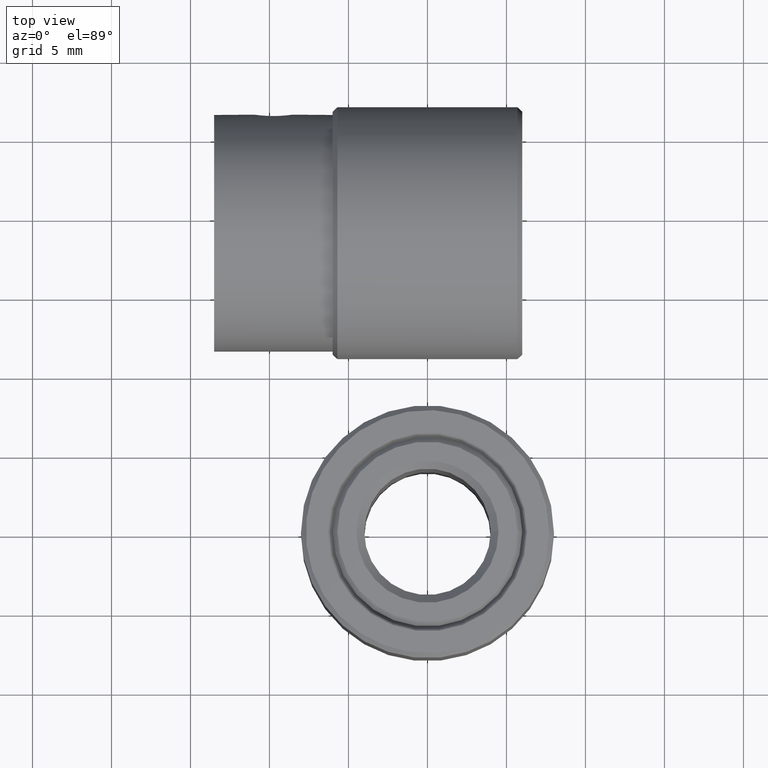
[diagram: clean part render]
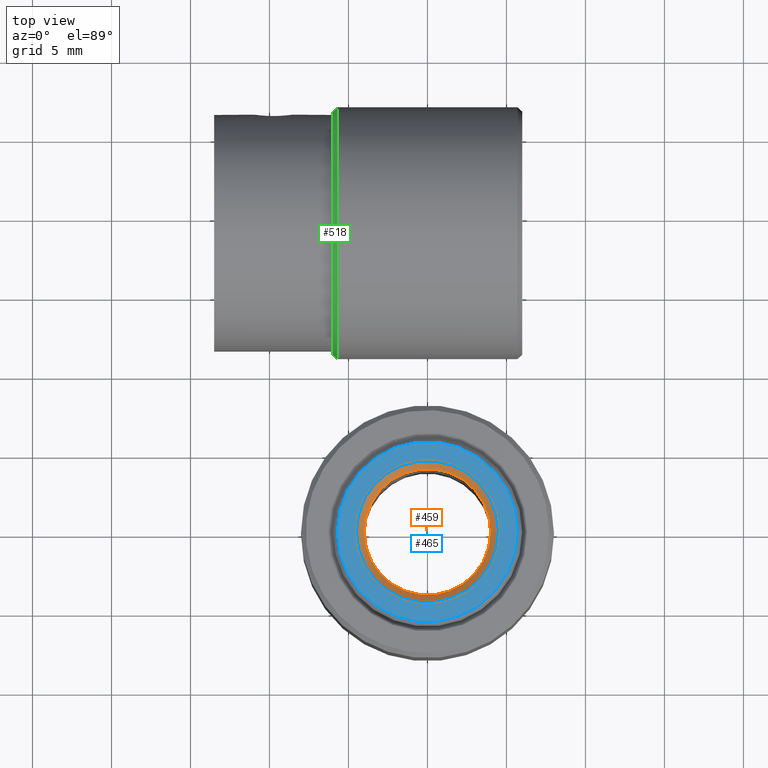
[diagram: same view with three faces highlighted in distinct colors, each labeled with its STEP entity id]
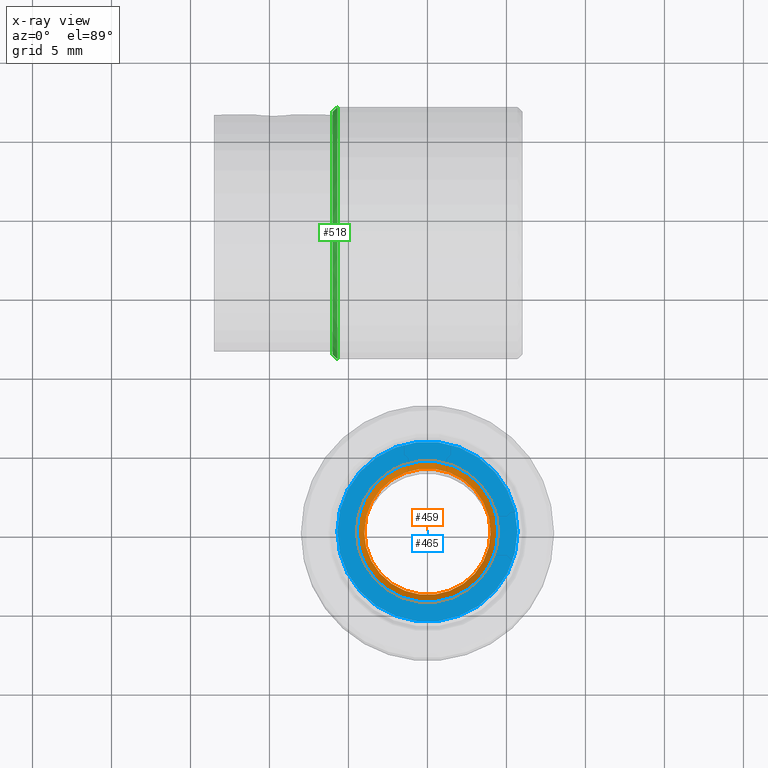
[diagram: x-ray of the same camera — body ghosted, the three highlighted faces saturated]
A machine part, top view with three faces highlighted in distinct colors.
The next image is the same camera in x-ray (body ghosted, the three faces saturated) — at least one of them is partly hidden behind the body in this view.
Their STEP definitions:

[orange] entity #459 — the highlighted conical surface has half-angle 45 deg.
#459 = ADVANCED_FACE( '', ( #566, #567 ), #568, .F. );
#566 = FACE_OUTER_BOUND( '', #810, .T. );
#567 = FACE_BOUND( '', #811, .T. );
#568 = CONICAL_SURFACE( '', #812, 4.00000000000000, 0.785398163397448 );
#810 = EDGE_LOOP( '', ( #1062 ) );
#811 = EDGE_LOOP( '', ( #1063 ) );
#812 = AXIS2_PLACEMENT_3D( '', #1064, #1065, #1066 );
#1062 = ORIENTED_EDGE( '', *, *, #1580, .F. );
#1063 = ORIENTED_EDGE( '', *, *, #1576, .F. );
#1064 = CARTESIAN_POINT( '', ( 0.000000000000000, 0.000000000000000, -0.500000000000000 ) );
#1065 = DIRECTION( '', ( 0.000000000000000, -0.000000000000000, 1.00000000000000 ) );
#1066 = DIRECTION( '', ( 1.00000000000000, 0.000000000000000, -0.000000000000000 ) );
#1576 = EDGE_CURVE( '', #1718, #1718, #1719, .T. );
#1580 = EDGE_CURVE( '', #1726, #1726, #1727, .F. );
#1718 = VERTEX_POINT( '', #2036 );
#1719 = CIRCLE( '', #2037, 4.00000000000000 );
#1726 = VERTEX_POINT( '', #2122 );
#1727 = CIRCLE( '', #2123, 4.50000000000000 );
#2036 = CARTESIAN_POINT( '', ( 4.00000000000000, 0.000000000000000, -0.500000000000000 ) );
#2037 = AXIS2_PLACEMENT_3D( '', #2582, #2583, #2584 );
#2122 = CARTESIAN_POINT( '', ( 4.50000000000000, 0.000000000000000, 0.000000000000000 ) );
#2123 = AXIS2_PLACEMENT_3D( '', #2588, #2589, #2590 );
#2582 = CARTESIAN_POINT( '', ( 0.000000000000000, 0.000000000000000, -0.500000000000000 ) );
#2583 = DIRECTION( '', ( 0.000000000000000, 0.000000000000000, 1.00000000000000 ) );
#2584 = DIRECTION( '', ( 1.00000000000000, 0.000000000000000, -0.000000000000000 ) );
#2588 = CARTESIAN_POINT( '', ( 0.000000000000000, 0.000000000000000, 0.000000000000000 ) );
#2589 = DIRECTION( '', ( 0.000000000000000, 0.000000000000000, 1.00000000000000 ) );
#2590 = DIRECTION( '', ( 1.00000000000000, 0.000000000000000, -0.000000000000000 ) );

[blue] entity #465 — the highlighted planar face has unit normal (0, 0, 1).
#465 = ADVANCED_FACE( '', ( #584, #585 ), #586, .T. );
#584 = FACE_OUTER_BOUND( '', #828, .T. );
#585 = FACE_BOUND( '', #829, .T. );
#586 = PLANE( '', #830 );
#828 = EDGE_LOOP( '', ( #1092 ) );
#829 = EDGE_LOOP( '', ( #1093 ) );
#830 = AXIS2_PLACEMENT_3D( '', #1094, #1095, #1096 );
#1092 = ORIENTED_EDGE( '', *, *, #1574, .T. );
#1093 = ORIENTED_EDGE( '', *, *, #1580, .T. );
#1094 = CARTESIAN_POINT( '', ( 0.000000000000000, 0.000000000000000, 0.000000000000000 ) );
#1095 = DIRECTION( '', ( 0.000000000000000, 0.000000000000000, 1.00000000000000 ) );
#1096 = DIRECTION( '', ( 1.00000000000000, 0.000000000000000, 0.000000000000000 ) );
#1574 = EDGE_CURVE( '', #1714, #1714, #1715, .T. );
#1580 = EDGE_CURVE( '', #1726, #1726, #1727, .F. );
#1714 = VERTEX_POINT( '', #2032 );
#1715 = CIRCLE( '', #2033, 5.70000000000000 );
#1726 = VERTEX_POINT( '', #2122 );
#1727 = CIRCLE( '', #2123, 4.50000000000000 );
#2032 = CARTESIAN_POINT( '', ( 5.70000000000000, 0.000000000000000, 0.000000000000000 ) );
#2033 = AXIS2_PLACEMENT_3D( '', #2576, #2577, #2578 );
#2122 = CARTESIAN_POINT( '', ( 4.50000000000000, 0.000000000000000, 0.000000000000000 ) );
#2123 = AXIS2_PLACEMENT_3D( '', #2588, #2589, #2590 );
#2576 = CARTESIAN_POINT( '', ( 0.000000000000000, 0.000000000000000, 0.000000000000000 ) );
#2577 = DIRECTION( '', ( 0.000000000000000, 0.000000000000000, 1.00000000000000 ) );
#2578 = DIRECTION( '', ( 1.00000000000000, 0.000000000000000, -0.000000000000000 ) );
#2588 = CARTESIAN_POINT( '', ( 0.000000000000000, 0.000000000000000, 0.000000000000000 ) );
#2589 = DIRECTION( '', ( 0.000000000000000, 0.000000000000000, 1.00000000000000 ) );
#2590 = DIRECTION( '', ( 1.00000000000000, 0.000000000000000, -0.000000000000000 ) );

[green] entity #518 — the highlighted conical surface has half-angle 45 deg.
#518 = ADVANCED_FACE( '', ( #733, #734 ), #735, .T. );
#733 = FACE_BOUND( '', #977, .T. );
#734 = FACE_OUTER_BOUND( '', #978, .T. );
#735 = CONICAL_SURFACE( '', #979, 8.00000000000000, 0.785398163397448 );
#977 = EDGE_LOOP( '', ( #1403 ) );
#978 = EDGE_LOOP( '', ( #1404 ) );
#979 = AXIS2_PLACEMENT_3D( '', #1405, #1406, #1407 );
#1403 = ORIENTED_EDGE( '', *, *, #1652, .F. );
#1404 = ORIENTED_EDGE( '', *, *, #1659, .F. );
#1405 = CARTESIAN_POINT( '', ( -5.70000000000000, 19.0000000000000, -6.00000000000000 ) );
#1406 = DIRECTION( '', ( 1.00000000000000, -0.000000000000000, 6.12323399573677E-017 ) );
#1407 = DIRECTION( '', ( 6.12323399573677E-017, 0.000000000000000, -1.00000000000000 ) );
#1652 = EDGE_CURVE( '', #1854, #1854, #1855, .F. );
#1659 = EDGE_CURVE( '', #1868, #1868, #1869, .T. );
#1854 = VERTEX_POINT( '', #2442 );
#1855 = CIRCLE( '', #2443, 7.70000000000000 );
#1868 = VERTEX_POINT( '', #2456 );
#1869 = CIRCLE( '', #2457, 8.00000000000000 );
#2442 = CARTESIAN_POINT( '', ( -6.00000000000000, 19.0000000000000, -13.7000000000000 ) );
#2443 = AXIS2_PLACEMENT_3D( '', #2714, #2715, #2716 );
#2456 = CARTESIAN_POINT( '', ( -5.70000000000000, 19.0000000000000, -14.0000000000000 ) );
#2457 = AXIS2_PLACEMENT_3D( '', #2735, #2736, #2737 );
#2714 = CARTESIAN_POINT( '', ( -6.00000000000000, 19.0000000000000, -6.00000000000000 ) );
#2715 = DIRECTION( '', ( 1.00000000000000, 0.000000000000000, 6.12323399573677E-017 ) );
#2716 = DIRECTION( '', ( 6.12323399573677E-017, 0.000000000000000, -1.00000000000000 ) );
#2735 = CARTESIAN_POINT( '', ( -5.70000000000000, 19.0000000000000, -6.00000000000000 ) );
#2736 = DIRECTION( '', ( 1.00000000000000, 0.000000000000000, 6.12323399573677E-017 ) );
#2737 = DIRECTION( '', ( 6.12323399573677E-017, 0.000000000000000, -1.00000000000000 ) );